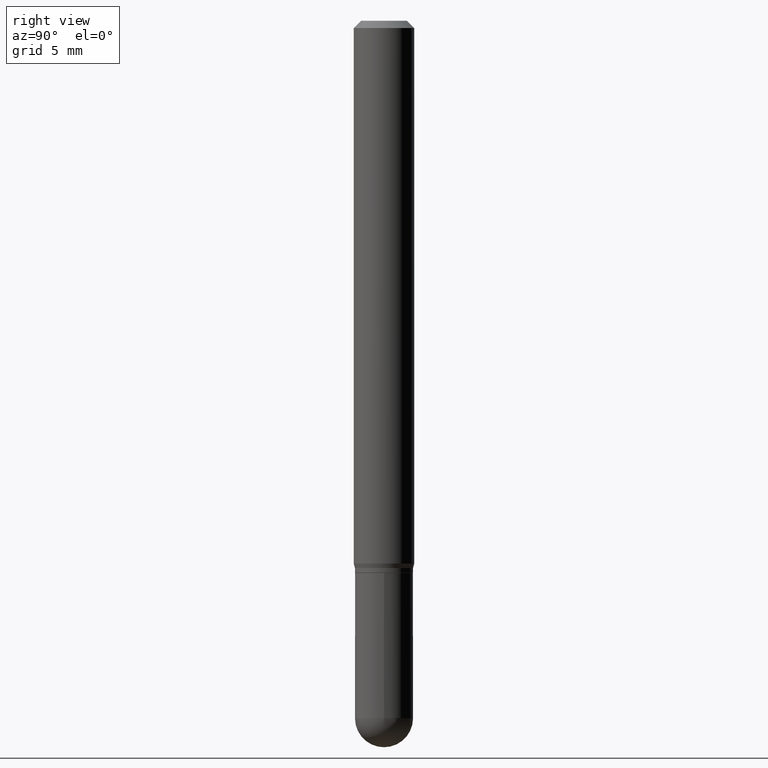
[diagram: clean part render]
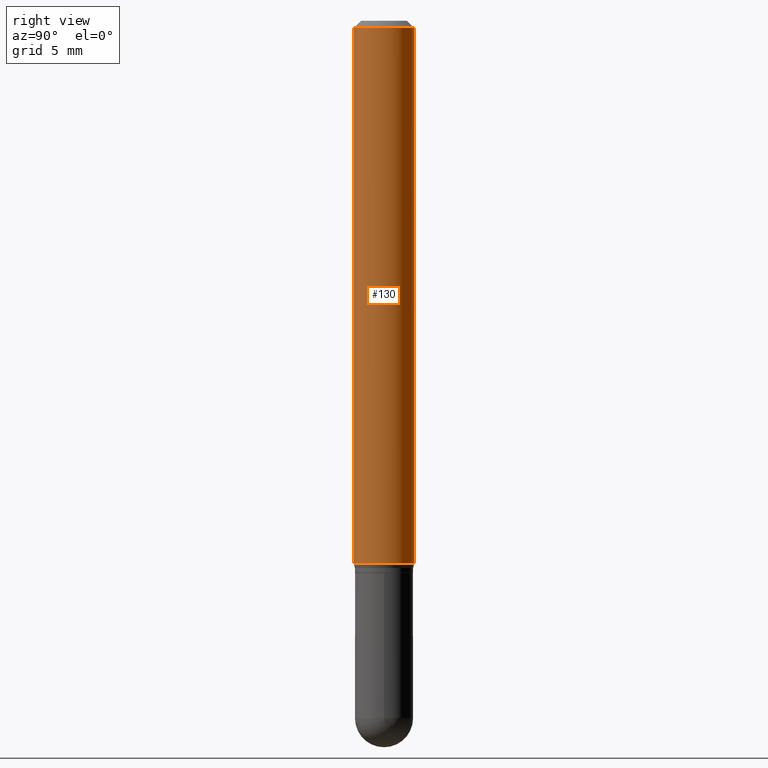
[diagram: same view with one face highlighted and labeled with its STEP entity id]
A machine part, right view. The second image highlights one B-rep face of the part: STEP entity #130.
In plain terms, the highlighted cylindrical surface (edge-blend (fillet) strip) has radius 1.5875 mm, axis along (-0, 0, 1).
Its self-contained STEP definition (entity closure, byte-faithful):
#7 = DIRECTION ( 'NONE',  ( -2.445441325104766561E-29, 3.491520693314361482E-15, 1.000000000000000000 ) ) ;
#22 = ORIENTED_EDGE ( 'NONE', *, *, #170, .T. ) ;
#33 = AXIS2_PLACEMENT_3D ( 'NONE', #131, #212, #492 ) ;
#43 = CARTESIAN_POINT ( 'NONE',  ( 2.740532419187838952E-29, -3.912842051887413141E-15, -1.120669872981078674 ) ) ;
#74 = CARTESIAN_POINT ( 'NONE',  ( 4.440892098500625669E-16, 0.06250000000000000000, -2.182200433321475680E-16 ) ) ;
#91 = DIRECTION ( 'NONE',  ( -6.982962677686265922E-15, -1.000000000000000000, 4.370956789862821150E-15 ) ) ;
#113 = CARTESIAN_POINT ( 'NONE',  ( -4.364351673553912750E-16, -0.06250000000000005551, -0.01499999999999979128 ) ) ;
#125 = DIRECTION ( 'NONE',  ( -6.982962677686265922E-15, -1.000000000000000000, 3.491520693314361088E-15 ) ) ;
#127 = AXIS2_PLACEMENT_3D ( 'NONE', #43, #165, #91 ) ;
#130 = ADVANCED_FACE ( 'NONE', ( #367 ), #398, .T. ) ;
#131 = CARTESIAN_POINT ( 'NONE',  ( 3.668161987657152172E-31, -5.237281039971545133E-17, -0.01500000000000000812 ) ) ;
#143 = VECTOR ( 'NONE', #349, 39.37007874015748143 ) ;
#161 = EDGE_CURVE ( 'NONE', #243, #491, #479, .T. ) ;
#165 = DIRECTION ( 'NONE',  ( -2.445441325104766561E-29, 3.491520693314361482E-15, 1.000000000000000000 ) ) ;
#170 = EDGE_CURVE ( 'NONE', #243, #324, #467, .T. ) ;
#183 = ORIENTED_EDGE ( 'NONE', *, *, #389, .T. ) ;
#191 = LINE ( 'NONE', #74, #143 ) ;
#195 = AXIS2_PLACEMENT_3D ( 'NONE', #439, #7, #125 ) ;
#212 = DIRECTION ( 'NONE',  ( -2.445441325104766561E-29, 3.491520693314361482E-15, 1.000000000000000000 ) ) ;
#233 = VERTEX_POINT ( 'NONE', #452 ) ;
#241 = DIRECTION ( 'NONE',  ( -2.445441325104766281E-29, 3.491520693314361482E-15, 1.000000000000000000 ) ) ;
#243 = VERTEX_POINT ( 'NONE', #256 ) ;
#255 = CIRCLE ( 'NONE', #33, 0.06250000000000000000 ) ;
#256 = CARTESIAN_POINT ( 'NONE',  ( -4.364351673553640100E-16, -0.06250000000000388578, -1.120669872981078452 ) ) ;
#267 = EDGE_CURVE ( 'NONE', #491, #233, #255, .T. ) ;
#279 = EDGE_LOOP ( 'NONE', ( #22, #183, #488, #507 ) ) ;
#289 = CARTESIAN_POINT ( 'NONE',  ( -4.364351673553916201E-16, -0.06250000000000000000, 2.182200433321475680E-16 ) ) ;
#324 = VERTEX_POINT ( 'NONE', #457 ) ;
#349 = DIRECTION ( 'NONE',  ( -2.445441325104766281E-29, 3.491520693314361482E-15, 1.000000000000000000 ) ) ;
#367 = FACE_OUTER_BOUND ( 'NONE', #279, .T. ) ;
#389 = EDGE_CURVE ( 'NONE', #324, #233, #191, .T. ) ;
#398 = CYLINDRICAL_SURFACE ( 'NONE', #195, 0.06250000000000000000 ) ;
#439 = CARTESIAN_POINT ( 'NONE',  ( 0.000000000000000000, 0.000000000000000000, 0.000000000000000000 ) ) ;
#452 = CARTESIAN_POINT ( 'NONE',  ( 4.440892098500901277E-16, 0.06249999999999995143, -0.01500000000000022669 ) ) ;
#457 = CARTESIAN_POINT ( 'NONE',  ( 4.440892098500901277E-16, 0.06249999999999610728, -1.120669872981078896 ) ) ;
#467 = CIRCLE ( 'NONE', #127, 0.06250000000000000000 ) ;
#479 = LINE ( 'NONE', #289, #496 ) ;
#488 = ORIENTED_EDGE ( 'NONE', *, *, #267, .F. ) ;
#491 = VERTEX_POINT ( 'NONE', #113 ) ;
#492 = DIRECTION ( 'NONE',  ( -6.982962677686265922E-15, -1.000000000000000000, 3.483106191921935554E-15 ) ) ;
#496 = VECTOR ( 'NONE', #241, 39.37007874015748143 ) ;
#507 = ORIENTED_EDGE ( 'NONE', *, *, #161, .F. ) ;